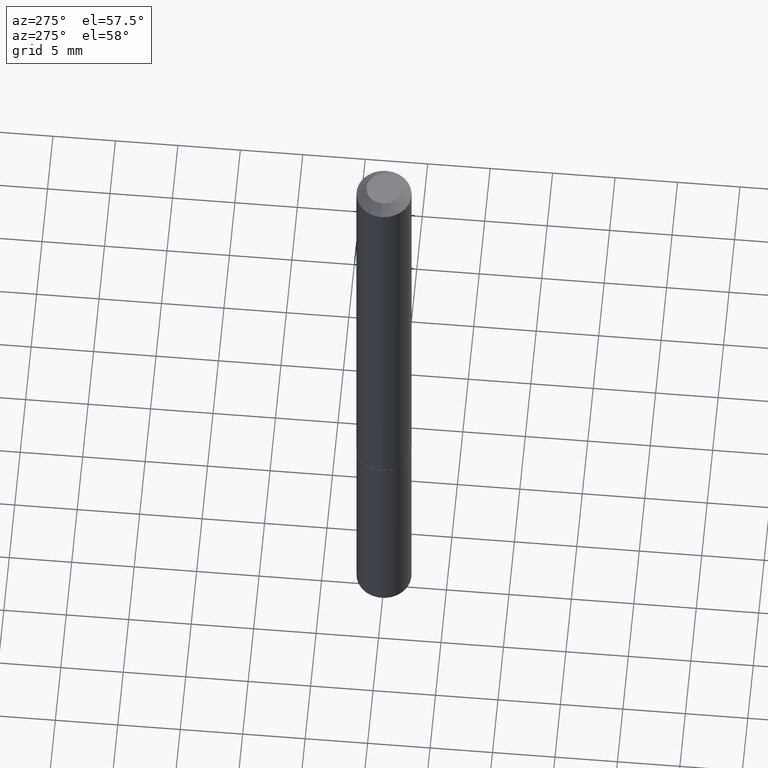
[diagram: clean part render]
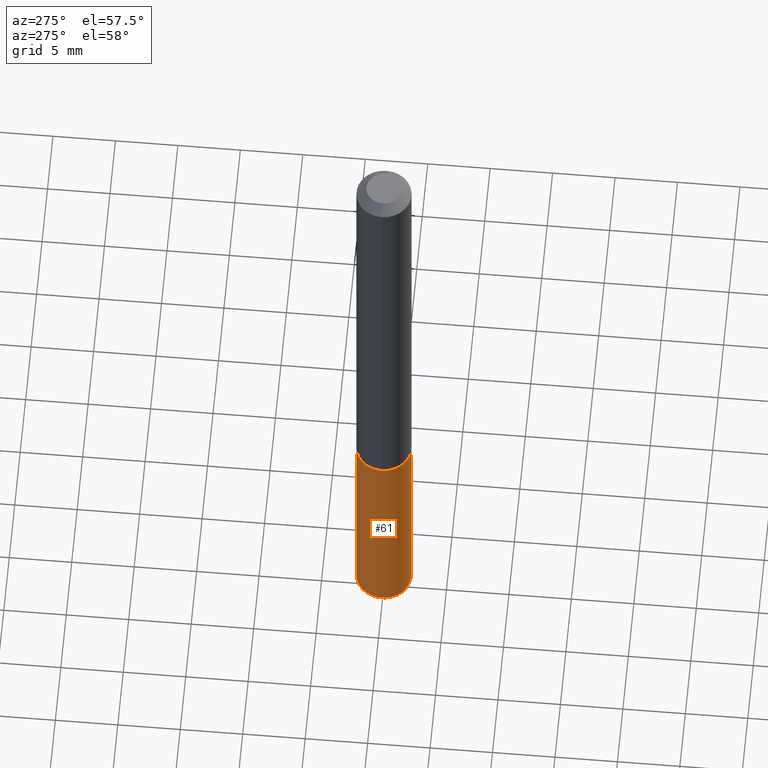
[diagram: same view with one face highlighted and labeled with its STEP entity id]
A machine part, auxiliary view. The second image highlights one B-rep face of the part: STEP entity #61.
In plain terms, the highlighted cylindrical surface (edge-blend (fillet) strip) has radius 2.1996 mm, axis along (-0, 0, 1).
Its self-contained STEP definition (entity closure, byte-faithful):
#8 = VECTOR ( 'NONE', #279, 39.37007874015748143 ) ;
#13 = ORIENTED_EDGE ( 'NONE', *, *, #274, .F. ) ;
#16 = VERTEX_POINT ( 'NONE', #270 ) ;
#35 = LINE ( 'NONE', #122, #356 ) ;
#48 = DIRECTION ( 'NONE',  ( -6.982962677686265922E-15, -1.000000000000000000, 3.154558884138872662E-15 ) ) ;
#61 = ADVANCED_FACE ( 'NONE', ( #80 ), #385, .T. ) ;
#72 = EDGE_CURVE ( 'NONE', #161, #296, #183, .T. ) ;
#73 = EDGE_CURVE ( 'NONE', #16, #234, #201, .T. ) ;
#78 = EDGE_LOOP ( 'NONE', ( #13, #359, #322, #345 ) ) ;
#80 = FACE_OUTER_BOUND ( 'NONE', #78, .T. ) ;
#109 = CARTESIAN_POINT ( 'NONE',  ( 3.697059741190689517E-29, -5.278421488063067239E-15, -1.511800000000000033 ) ) ;
#113 = CARTESIAN_POINT ( 'NONE',  ( 3.697059741190689517E-29, -5.278421488063067239E-15, -1.511800000000000033 ) ) ;
#122 = CARTESIAN_POINT ( 'NONE',  ( 6.153300091682836148E-16, 0.08659999999999470899, -1.511800000000000255 ) ) ;
#146 = CARTESIAN_POINT ( 'NONE',  ( 6.153300091683017586E-16, 0.08659999999999469511, -1.511800000000000255 ) ) ;
#161 = VERTEX_POINT ( 'NONE', #146 ) ;
#171 = CARTESIAN_POINT ( 'NONE',  ( 5.517419975338388882E-29, -7.877513044165762958E-15, -2.256195124883080272 ) ) ;
#183 = CIRCLE ( 'NONE', #368, 0.08659999999999998255 ) ;
#201 = CIRCLE ( 'NONE', #342, 0.08659999999999998255 ) ;
#205 = DIRECTION ( 'NONE',  ( -2.445422025612564352E-29, 3.491548331285653960E-15, 1.000000000000000000 ) ) ;
#220 = LINE ( 'NONE', #310, #8 ) ;
#229 = DIRECTION ( 'NONE',  ( -2.445422025612564352E-29, 3.491548331285653960E-15, 1.000000000000000000 ) ) ;
#234 = VERTEX_POINT ( 'NONE', #275 ) ;
#247 = AXIS2_PLACEMENT_3D ( 'NONE', #113, #229, #383 ) ;
#257 = CARTESIAN_POINT ( 'NONE',  ( -6.047245678875935520E-16, -0.08660000000000526998, -1.511799999999999811 ) ) ;
#264 = DIRECTION ( 'NONE',  ( -6.982962677686265922E-15, -1.000000000000000000, 3.154558884138872662E-15 ) ) ;
#270 = CARTESIAN_POINT ( 'NONE',  ( 6.153300091683018572E-16, 0.08659999999999209996, -2.256195124883080716 ) ) ;
#274 = EDGE_CURVE ( 'NONE', #16, #161, #35, .T. ) ;
#275 = CARTESIAN_POINT ( 'NONE',  ( -6.047245678875755068E-16, -0.08660000000000787901, -2.256195124883080272 ) ) ;
#279 = DIRECTION ( 'NONE',  ( -2.445422025612564632E-29, 3.491548331285654355E-15, 1.000000000000000000 ) ) ;
#294 = DIRECTION ( 'NONE',  ( -2.445422025612564352E-29, 3.491548331285653960E-15, 1.000000000000000000 ) ) ;
#296 = VERTEX_POINT ( 'NONE', #257 ) ;
#302 = EDGE_CURVE ( 'NONE', #234, #296, #220, .T. ) ;
#310 = CARTESIAN_POINT ( 'NONE',  ( -6.047245678875935520E-16, -0.08660000000000526998, -1.511799999999999811 ) ) ;
#322 = ORIENTED_EDGE ( 'NONE', *, *, #302, .T. ) ;
#340 = DIRECTION ( 'NONE',  ( -2.445422025612564632E-29, 3.491548331285654355E-15, 1.000000000000000000 ) ) ;
#342 = AXIS2_PLACEMENT_3D ( 'NONE', #171, #294, #264 ) ;
#345 = ORIENTED_EDGE ( 'NONE', *, *, #72, .F. ) ;
#356 = VECTOR ( 'NONE', #340, 39.37007874015748143 ) ;
#359 = ORIENTED_EDGE ( 'NONE', *, *, #73, .T. ) ;
#368 = AXIS2_PLACEMENT_3D ( 'NONE', #109, #205, #48 ) ;
#383 = DIRECTION ( 'NONE',  ( -6.982962677686265922E-15, -1.000000000000000000, 3.154558884138872662E-15 ) ) ;
#385 = CYLINDRICAL_SURFACE ( 'NONE', #247, 0.08659999999999998255 ) ;